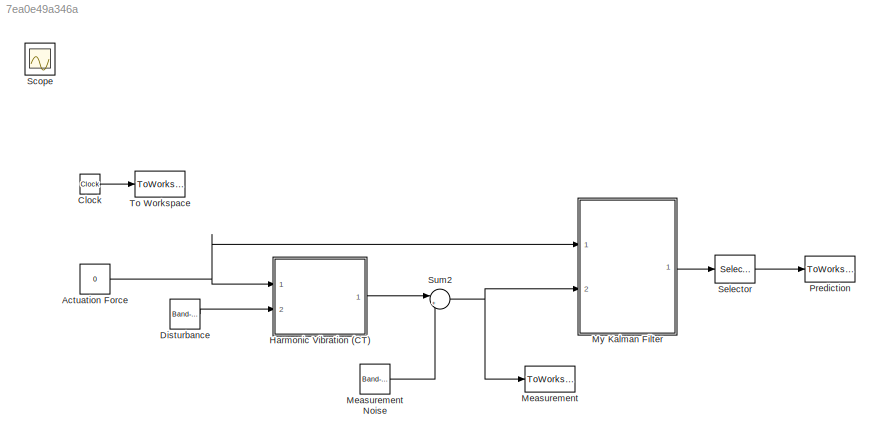
MODEL slx_7ea0e49a346a
KIND model
CONFIG AbsTol = auto
CONFIG EnableMultiTasking = off
CONFIG FixedStep = Ts
CONFIG MaxStep = auto
CONFIG MinStep = auto
CONFIG RelTol = 1e-3
CONFIG SampleTimeConstraint = Unconstrained
CONFIG Solver = FixedStepAuto
CONFIG SolverName = FixedStepAuto
CONFIG StartTime = 0.0
CONFIG StopTime = 10.0
BLOCK [Constant] Actuation Force
  Value = 0
BLOCK [Clock] Clock
BLOCK [Reference] Disturbance  REF=simulink/Sources/Band-Limited
White Noise
  Ports = [0, 1]
  SourceBlock = simulink/Sources/Band-Limited\nWhite Noise
  SourceProductBaseCode = SL
  SourceProductName = Simulink
  SourceType = Band-Limited White Noise.
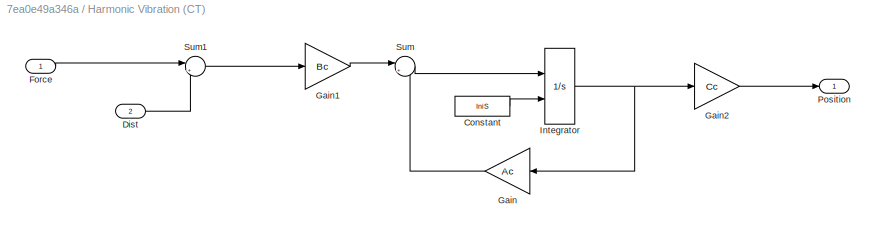
BLOCK [SubSystem] Harmonic Vibration (CT)
  Ports = [2, 1]
  RequestExecContextInheritance = off
BLOCK [Constant] Harmonic Vibration (CT)/Constant
  Value = IniS
BLOCK [Inport] Harmonic Vibration (CT)/Dist
  IconDisplay = Port number
  Port = 2
BLOCK [Inport] Harmonic Vibration (CT)/Force
  IconDisplay = Port number
BLOCK [Gain] Harmonic Vibration (CT)/Gain
  Gain = Ac
  Multiplication = Matrix(K*u)
  OutDataTypeStr = Inherit: Inherit via internal rule
  ParamDataTypeStr = Inherit: Inherit via internal rule
  SaturateOnIntegerOverflow = off
BLOCK [Gain] Harmonic Vibration (CT)/Gain1
  Gain = Bc
  Multiplication = Matrix(K*u)
  OutDataTypeStr = Inherit: Inherit via internal rule
  ParamDataTypeStr = Inherit: Inherit via internal rule
  SaturateOnIntegerOverflow = off
BLOCK [Gain] Harmonic Vibration (CT)/Gain2
  Gain = Cc
  Multiplication = Matrix(K*u)
  OutDataTypeStr = Inherit: Inherit via internal rule
  ParamDataTypeStr = Inherit: Inherit via internal rule
  SaturateOnIntegerOverflow = off
BLOCK [Integrator] Harmonic Vibration (CT)/Integrator
  InitialConditionSource = external
  Ports = [2, 1]
BLOCK [Outport] Harmonic Vibration (CT)/Position
  IconDisplay = Port number
BLOCK [Sum] Harmonic Vibration (CT)/Sum
  IconShape = round
  InputSameDT = off
  Inputs = |++
  OutDataTypeStr = Inherit: Inherit via internal rule
  Ports = [2, 1]
  SaturateOnIntegerOverflow = off
BLOCK [Sum] Harmonic Vibration (CT)/Sum1
  IconShape = round
  InputSameDT = off
  Inputs = |++
  OutDataTypeStr = Inherit: Inherit via internal rule
  Ports = [2, 1]
  SaturateOnIntegerOverflow = off
BLOCK [ToWorkspace] Measurement
  FixptAsFi = on
  MaxDataPoints = inf
  Ports = [1]
  SampleTime = Ts
  VariableName = xm
BLOCK [Reference] Measurement Noise  REF=simulink/Sources/Band-Limited
White Noise
  Ports = [0, 1]
  SourceBlock = simulink/Sources/Band-Limited\nWhite Noise
  SourceProductBaseCode = SL
  SourceProductName = Simulink
  SourceType = Band-Limited White Noise.
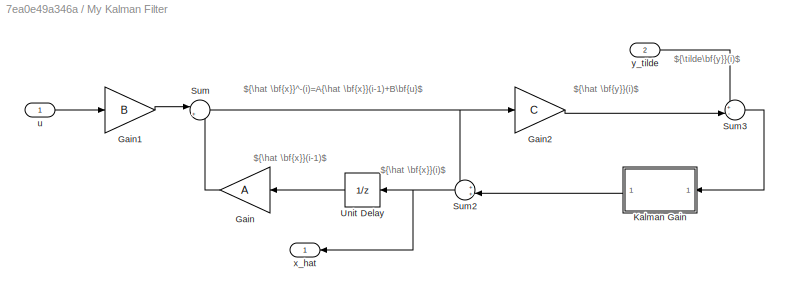
BLOCK [SubSystem] My Kalman Filter
  Ports = [2, 1]
  RequestExecContextInheritance = off
BLOCK [Gain] My Kalman Filter/Gain
  Gain = A
  Multiplication = Matrix(K*u)
  OutDataTypeStr = Inherit: Inherit via internal rule
  ParamDataTypeStr = Inherit: Inherit via internal rule
  SaturateOnIntegerOverflow = off
BLOCK [Gain] My Kalman Filter/Gain1
  Gain = B
  Multiplication = Matrix(K*u)
  OutDataTypeStr = Inherit: Inherit via internal rule
  ParamDataTypeStr = Inherit: Inherit via internal rule
  SaturateOnIntegerOverflow = off
BLOCK [Gain] My Kalman Filter/Gain2
  Gain = C
  Multiplication = Matrix(K*u)
  OutDataTypeStr = Inherit: Inherit via internal rule
  ParamDataTypeStr = Inherit: Inherit via internal rule
  SaturateOnIntegerOverflow = off
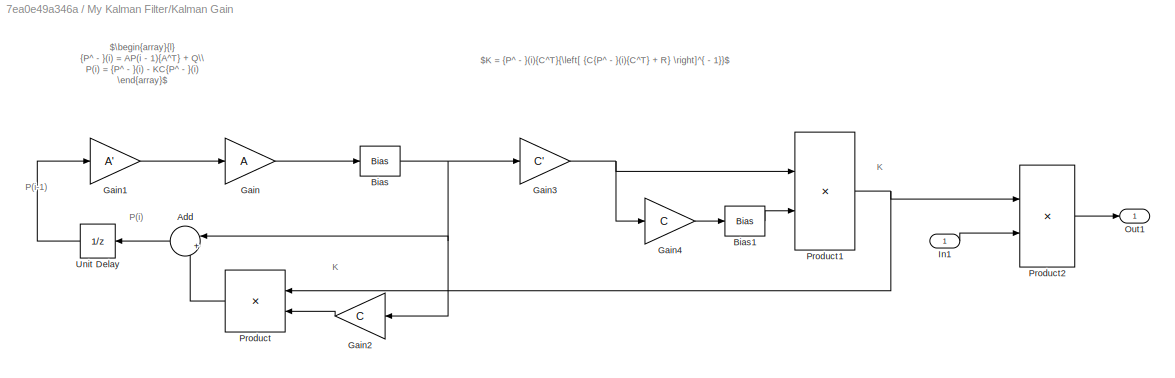
BLOCK [SubSystem] My Kalman Filter/Kalman Gain
  Ports = [1, 1]
  RequestExecContextInheritance = off
BLOCK [Sum] My Kalman Filter/Kalman Gain/Add
  IconShape = round
  InputSameDT = off
  Inputs = |+-
  OutDataTypeStr = Inherit: Inherit via internal rule
  Ports = [2, 1]
  SaturateOnIntegerOverflow = off
BLOCK [Bias] My Kalman Filter/Kalman Gain/Bias
  Bias = Q
  SaturateOnIntegerOverflow = off
BLOCK [Bias] My Kalman Filter/Kalman Gain/Bias1
  Bias = R
  SaturateOnIntegerOverflow = off
BLOCK [Gain] My Kalman Filter/Kalman Gain/Gain
  Gain = A
  Multiplication = Matrix(K*u)
  OutDataTypeStr = Inherit: Inherit via internal rule
  ParamDataTypeStr = Inherit: Inherit via internal rule
  SaturateOnIntegerOverflow = off
BLOCK [Gain] My Kalman Filter/Kalman Gain/Gain1
  Gain = A'
  Multiplication = Matrix(u*K)
  OutDataTypeStr = Inherit: Inherit via internal rule
  ParamDataTypeStr = Inherit: Inherit via internal rule
  SaturateOnIntegerOverflow = off
BLOCK [Gain] My Kalman Filter/Kalman Gain/Gain2
  Gain = C
  Multiplication = Matrix(K*u)
  OutDataTypeStr = Inherit: Inherit via internal rule
  ParamDataTypeStr = Inherit: Inherit via internal rule
  SaturateOnIntegerOverflow = off
BLOCK [Gain] My Kalman Filter/Kalman Gain/Gain3
  Gain = C'
  Multiplication = Matrix(u*K)
  OutDataTypeStr = Inherit: Inherit via internal rule
  ParamDataTypeStr = Inherit: Inherit via internal rule
  SaturateOnIntegerOverflow = off
BLOCK [Gain] My Kalman Filter/Kalman Gain/Gain4
  Gain = C
  Multiplication = Matrix(K*u)
  OutDataTypeStr = Inherit: Inherit via internal rule
  ParamDataTypeStr = Inherit: Inherit via internal rule
  SaturateOnIntegerOverflow = off
BLOCK [Inport] My Kalman Filter/Kalman Gain/In1
  IconDisplay = Port number
BLOCK [Outport] My Kalman Filter/Kalman Gain/Out1
  IconDisplay = Port number
BLOCK [Product] My Kalman Filter/Kalman Gain/Product
  InputSameDT = off
  Multiplication = Matrix(*)
  OutDataTypeStr = Inherit: Inherit via internal rule
  Ports = [2, 1]
  RndMeth = Floor
  SaturateOnIntegerOverflow = off
BLOCK [Product] My Kalman Filter/Kalman Gain/Product1
  InputSameDT = off
  Inputs = */
  Multiplication = Matrix(*)
  OutDataTypeStr = Inherit: Inherit via internal rule
  Ports = [2, 1]
  RndMeth = Floor
  SaturateOnIntegerOverflow = off
BLOCK [Product] My Kalman Filter/Kalman Gain/Product2
  InputSameDT = off
  Multiplication = Matrix(*)
  OutDataTypeStr = Inherit: Inherit via internal rule
  Ports = [2, 1]
  RndMeth = Floor
  SaturateOnIntegerOverflow = off
BLOCK [UnitDelay] My Kalman Filter/Kalman Gain/Unit Delay
  HasFrameUpgradeWarning = on
  SampleTime = -1
BLOCK [Sum] My Kalman Filter/Sum
  IconShape = round
  InputSameDT = off
  Inputs = |++
  OutDataTypeStr = Inherit: Inherit via internal rule
  Ports = [2, 1]
  SaturateOnIntegerOverflow = off
BLOCK [Sum] My Kalman Filter/Sum2
  IconShape = round
  InputSameDT = off
  Inputs = ++|
  OutDataTypeStr = Inherit: Inherit via internal rule
  Ports = [2, 1]
  SaturateOnIntegerOverflow = off
BLOCK [Sum] My Kalman Filter/Sum3
  IconShape = round
  InputSameDT = off
  Inputs = +-|
  OutDataTypeStr = Inherit: Inherit via internal rule
  Ports = [2, 1]
  SaturateOnIntegerOverflow = off
BLOCK [UnitDelay] My Kalman Filter/Unit Delay
  HasFrameUpgradeWarning = on
  InitialCondition = x0
  SampleTime = -1
BLOCK [Inport] My Kalman Filter/u
  IconDisplay = Port number
BLOCK [Outport] My Kalman Filter/x_hat
  IconDisplay = Port number
BLOCK [Inport] My Kalman Filter/y_tilde
  IconDisplay = Port number
  Port = 2
BLOCK [ToWorkspace] Prediction
  FixptAsFi = on
  MaxDataPoints = inf
  Ports = [1]
  SampleTime = Ts
  VariableName = xp
BLOCK [Scope] Scope
  Floating = off
  IOType = viewer
  NumInputPorts = 1
  Ports = []
  ScopeSpecificationString = Simulink.scopes.TimeScopeBlockCfg('CurrentConfiguration', extmgr.ConfigurationSet(extmgr.Configuration('Core','General UI',true),extmgr.Configuration('Core','Source UI',true),extmgr.Configuration('Sources','WiredSimulink',true),extmgr.Configuration('Visuals','Time Domain',true,'SerializedDisplays',{struct('MinYLimReal','-1.15833','MaxYLimReal','1.32333','YLabelReal','','MinYLimMag','0.00000','MaxY...<+1335ch>
BLOCK [Selector] Selector
  IndexOptions = Index vector (dialog)
  Indices = 1
  InputPortWidth = 2
  OutputSizes = 1
  Ports = [1, 1]
BLOCK [Sum] Sum2
  IconShape = round
  InputSameDT = off
  Inputs = |++
  OutDataTypeStr = Inherit: Inherit via internal rule
  Ports = [2, 1]
  SaturateOnIntegerOverflow = off
BLOCK [ToWorkspace] To Workspace
  FixptAsFi = on
  MaxDataPoints = inf
  Ports = [1]
  SampleTime = Ts
  VariableName = t
ANNOTATION My Kalman Filter: ${\hat \bf{x}}(i)$
ANNOTATION My Kalman Filter: ${\hat \bf{x}}(i-1)$
ANNOTATION My Kalman Filter: ${\hat \bf{x}}^-(i)=A{\hat \bf{x}}(i-1)+B\bf{u}$
ANNOTATION My Kalman Filter: ${\hat \bf{y}}(i)$
ANNOTATION My Kalman Filter: ${\tilde\bf{y}}(i)$
ANNOTATION My Kalman Filter/Kalman Gain: K
ANNOTATION My Kalman Filter/Kalman Gain: P(i)
ANNOTATION My Kalman Filter/Kalman Gain: P(i-1)
ANNOTATION My Kalman Filter/Kalman Gain: $K = {P^ - }(i){C^T}{\left[ {C{P^ - }(i){C^T} + R} \right]^{ - 1}}$
ANNOTATION My Kalman Filter/Kalman Gain: $\begin{array}{l} {P^ - }(i) = AP(i - 1){A^T} + Q\\ P(i) = {P^ - }(i) - KC{P^ - }(i) \end{array}$
NET Actuation Force:1 -> Harmonic Vibration (CT):1, My Kalman Filter:1
LINE Clock:1 -> To Workspace:1
LINE Disturbance:1 -> Harmonic Vibration (CT):2
LINE Harmonic Vibration (CT)/Constant:1 -> Harmonic Vibration (CT)/Integrator:2
LINE Harmonic Vibration (CT)/Dist:1 -> Harmonic Vibration (CT)/Sum1:2
LINE Harmonic Vibration (CT)/Force:1 -> Harmonic Vibration (CT)/Sum1:1
LINE Harmonic Vibration (CT)/Gain1:1 -> Harmonic Vibration (CT)/Sum:1
LINE Harmonic Vibration (CT)/Gain2:1 -> Harmonic Vibration (CT)/Position:1
LINE Harmonic Vibration (CT)/Gain:1 -> Harmonic Vibration (CT)/Sum:2
NET Harmonic Vibration (CT)/Integrator:1 -> Harmonic Vibration (CT)/Gain2:1, Harmonic Vibration (CT)/Gain:1
LINE Harmonic Vibration (CT)/Sum1:1 -> Harmonic Vibration (CT)/Gain1:1
LINE Harmonic Vibration (CT)/Sum:1 -> Harmonic Vibration (CT)/Integrator:1
LINE Harmonic Vibration (CT):1 -> Sum2:1
LINE Measurement Noise:1 -> Sum2:2
LINE My Kalman Filter/Gain1:1 -> My Kalman Filter/Sum:1
LINE My Kalman Filter/Gain2:1 -> My Kalman Filter/Sum3:2
LINE My Kalman Filter/Gain:1 -> My Kalman Filter/Sum:2
LINE My Kalman Filter/Kalman Gain/Add:1 -> My Kalman Filter/Kalman Gain/Unit Delay:1
LINE My Kalman Filter/Kalman Gain/Bias1:1 -> My Kalman Filter/Kalman Gain/Product1:2
NET My Kalman Filter/Kalman Gain/Bias:1 -> My Kalman Filter/Kalman Gain/Add:1, My Kalman Filter/Kalman Gain/Gain2:1, My Kalman Filter/Kalman Gain/Gain3:1
LINE My Kalman Filter/Kalman Gain/Gain1:1 -> My Kalman Filter/Kalman Gain/Gain:1
LINE My Kalman Filter/Kalman Gain/Gain2:1 -> My Kalman Filter/Kalman Gain/Product:2
NET My Kalman Filter/Kalman Gain/Gain3:1 -> My Kalman Filter/Kalman Gain/Gain4:1, My Kalman Filter/Kalman Gain/Product1:1
LINE My Kalman Filter/Kalman Gain/Gain4:1 -> My Kalman Filter/Kalman Gain/Bias1:1
LINE My Kalman Filter/Kalman Gain/Gain:1 -> My Kalman Filter/Kalman Gain/Bias:1
LINE My Kalman Filter/Kalman Gain/In1:1 -> My Kalman Filter/Kalman Gain/Product2:2
NET My Kalman Filter/Kalman Gain/Product1:1 -> My Kalman Filter/Kalman Gain/Product2:1, My Kalman Filter/Kalman Gain/Product:1
LINE My Kalman Filter/Kalman Gain/Product2:1 -> My Kalman Filter/Kalman Gain/Out1:1
LINE My Kalman Filter/Kalman Gain/Product:1 -> My Kalman Filter/Kalman Gain/Add:2
LINE My Kalman Filter/Kalman Gain/Unit Delay:1 -> My Kalman Filter/Kalman Gain/Gain1:1
LINE My Kalman Filter/Kalman Gain:1 -> My Kalman Filter/Sum2:2
NET My Kalman Filter/Sum2:1 -> My Kalman Filter/Unit Delay:1, My Kalman Filter/x_hat:1
LINE My Kalman Filter/Sum3:1 -> My Kalman Filter/Kalman Gain:1
NET My Kalman Filter/Sum:1 -> My Kalman Filter/Gain2:1, My Kalman Filter/Sum2:1
LINE My Kalman Filter/Unit Delay:1 -> My Kalman Filter/Gain:1
LINE My Kalman Filter/u:1 -> My Kalman Filter/Gain1:1
LINE My Kalman Filter/y_tilde:1 -> My Kalman Filter/Sum3:1
LINE My Kalman Filter:1 -> Selector:1
LINE Selector:1 -> Prediction:1
NET Sum2:1 -> Measurement:1, My Kalman Filter:2
note: NET lines group one-source signal fan-out (src -> all destinations, sorted); 1:1 wires keep LINE
